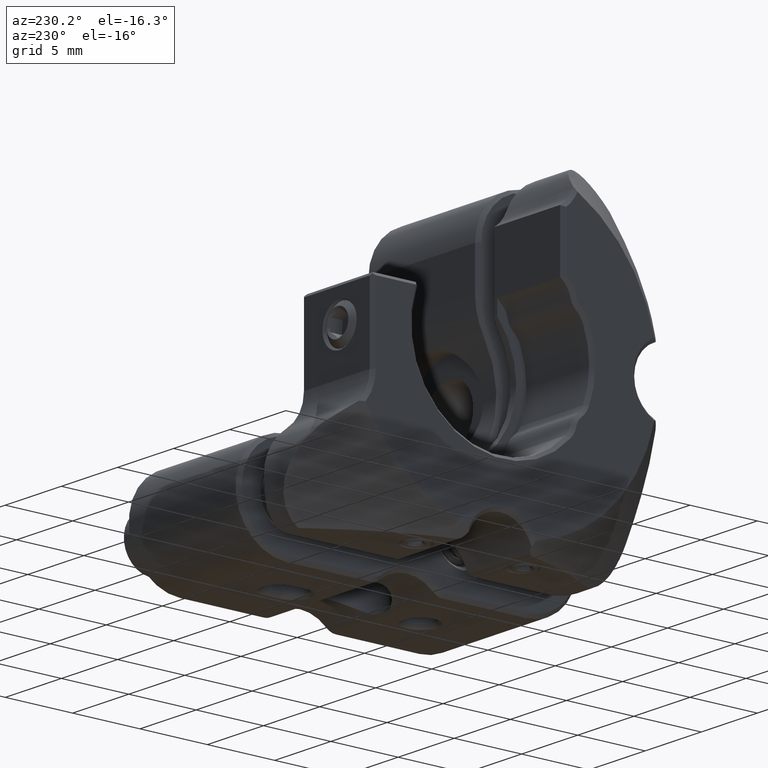
[diagram: clean part render]
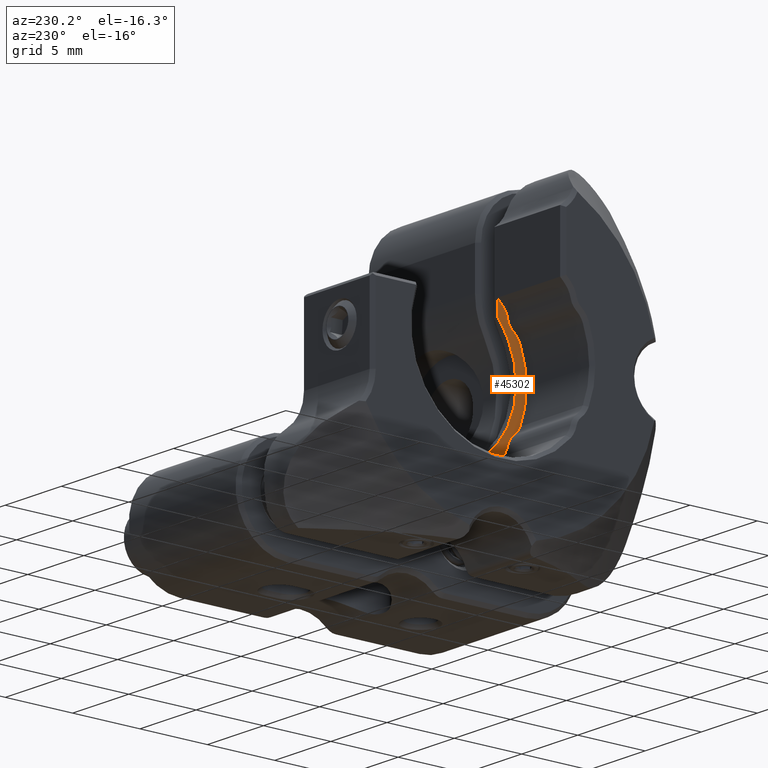
[diagram: same view with one face highlighted and labeled with its STEP entity id]
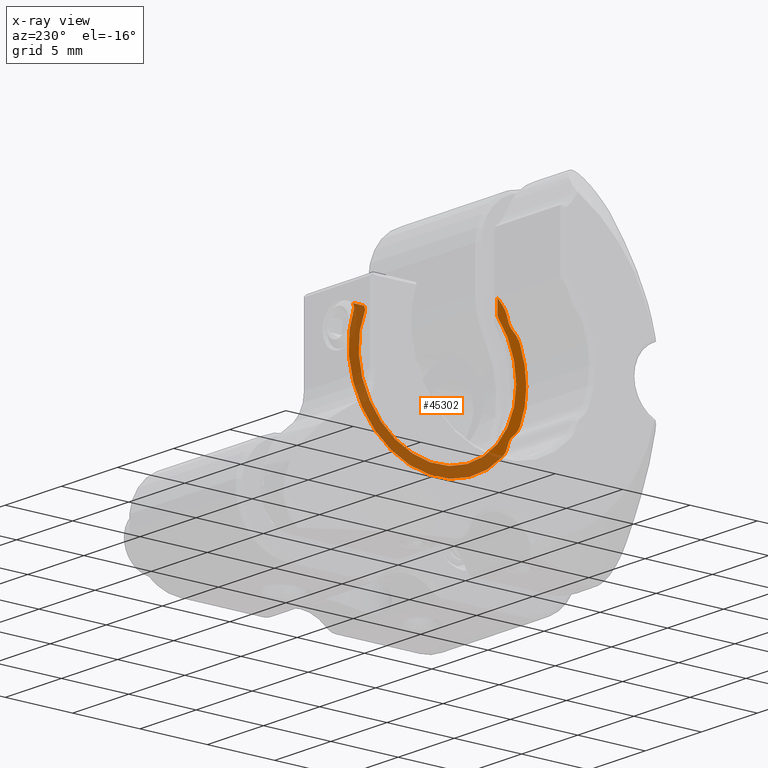
[diagram: x-ray of the same camera — body ghosted, the highlighted face saturated]
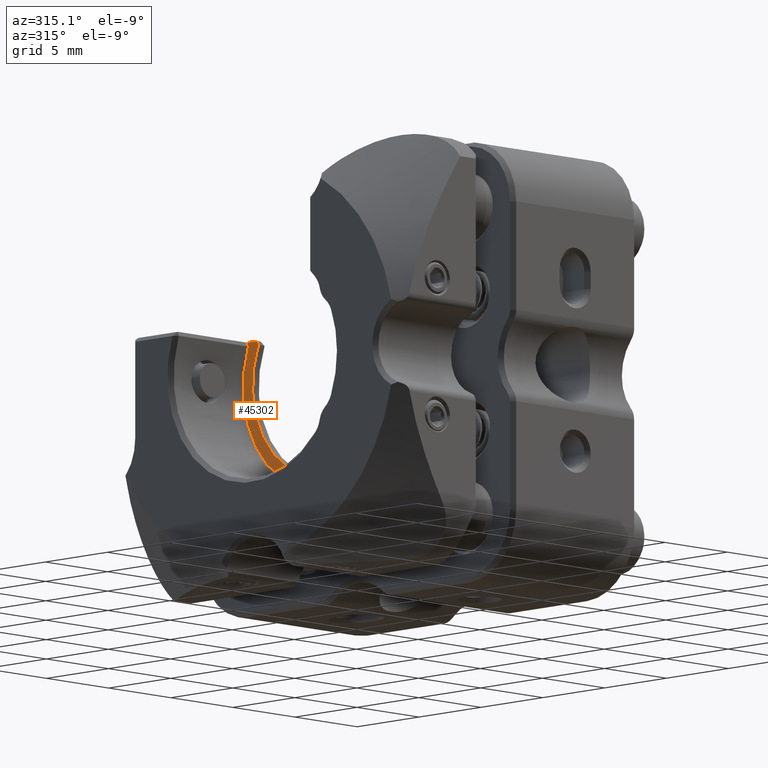
[diagram: same view with one face highlighted and labeled with its STEP entity id]
A machine part, auxiliary view. The second image highlights one B-rep face of the part: STEP entity #45302.
The next image is the same camera in x-ray: the body ghosted, the highlighted face saturated — about 65% of this face is hidden behind the body in this view.
A second angle (auxiliary view) of the same face is appended — the face is thin or edge-on in the first view.
In plain terms, the highlighted planar face has unit normal (-1, -0, 0).
Its self-contained STEP definition (entity closure, byte-faithful):
#137 = CARTESIAN_POINT ( 'NONE',  ( -7.500000000000001776, -6.344288770224766338, -4.000000000000157208 ) ) ;
#761 = CARTESIAN_POINT ( 'NONE',  ( -7.500000000000001776, -3.750800921362283713, 3.455646458812991373 ) ) ;
#1418 = CIRCLE ( 'NONE', #46984, 6.600000000000001421 ) ;
#1555 = AXIS2_PLACEMENT_3D ( 'NONE', #21992, #36753, #44259 ) ;
#1769 = CARTESIAN_POINT ( 'NONE',  ( -7.500000000000001776, 6.177629118058951541, 2.323122570961214439 ) ) ;
#1834 = AXIS2_PLACEMENT_3D ( 'NONE', #47799, #7643, #43927 ) ;
#1948 = AXIS2_PLACEMENT_3D ( 'NONE', #31914, #21254, #36020 ) ;
#2209 = EDGE_CURVE ( 'NONE', #12589, #30702, #32298, .T. ) ;
#2298 = CARTESIAN_POINT ( 'NONE',  ( -7.500000000000001776, -5.645934562276532453, -3.086325331290892482 ) ) ;
#2518 = VERTEX_POINT ( 'NONE', #11492 ) ;
#2530 = EDGE_CURVE ( 'NONE', #7406, #22437, #23456, .T. ) ;
#3073 = CARTESIAN_POINT ( 'NONE',  ( -7.500000000000001776, 5.366947043006404350, 2.327741273759627916 ) ) ;
#3352 = VECTOR ( 'NONE', #47067, 1000.000000000000000 ) ;
#4002 = DIRECTION ( 'NONE',  ( 0.000000000000000000, -1.000000000000000000, 0.000000000000000000 ) ) ;
#4449 = CARTESIAN_POINT ( 'NONE',  ( -7.500000000000001776, -3.469446951953614189E-15, 2.559999999999841958 ) ) ;
#4778 = ORIENTED_EDGE ( 'NONE', *, *, #11031, .F. ) ;
#5027 = CARTESIAN_POINT ( 'NONE',  ( -7.500000000000001776, -3.469446951953614189E-15, -1.582072770256425168E-13 ) ) ;
#7406 = VERTEX_POINT ( 'NONE', #2298 ) ;
#7643 = DIRECTION ( 'NONE',  ( -1.000000000000000000, 0.000000000000000000, 0.000000000000000000 ) ) ;
#8234 = VERTEX_POINT ( 'NONE', #24437 ) ;
#8295 = DIRECTION ( 'NONE',  ( 0.000000000000000000, -1.000000000000000000, -3.608224830031759249E-16 ) ) ;
#8542 = CARTESIAN_POINT ( 'NONE',  ( -7.500000000000001776, -3.469446951953614189E-15, -1.582072770256425168E-13 ) ) ;
#9173 = CARTESIAN_POINT ( 'NONE',  ( -7.500000000000001776, -4.440000000000003055, 3.809055000915428479 ) ) ;
#9907 = AXIS2_PLACEMENT_3D ( 'NONE', #31194, #45481, #35062 ) ;
#10496 = AXIS2_PLACEMENT_3D ( 'NONE', #16219, #23702, #13066 ) ;
#10837 = EDGE_LOOP ( 'NONE', ( #38805, #16166, #12513, #18409, #16858, #33813, #12537, #35054, #13655, #30728, #4778, #12504, #46291, #42135 ) ) ;
#11031 = EDGE_CURVE ( 'NONE', #8234, #47594, #30085, .T. ) ;
#11492 = CARTESIAN_POINT ( 'NONE',  ( -7.500000000000001776, -4.440000000000006608, 4.883277587850035850 ) ) ;
#11602 = VECTOR ( 'NONE', #30872, 1000.000000000000000 ) ;
#12151 = VERTEX_POINT ( 'NONE', #9173 ) ;
#12504 = ORIENTED_EDGE ( 'NONE', *, *, #19587, .T. ) ;
#12513 = ORIENTED_EDGE ( 'NONE', *, *, #24882, .T. ) ;
#12537 = ORIENTED_EDGE ( 'NONE', *, *, #2530, .F. ) ;
#12589 = VERTEX_POINT ( 'NONE', #28721 ) ;
#12836 = EDGE_CURVE ( 'NONE', #2518, #12151, #44922, .T. ) ;
#13066 = DIRECTION ( 'NONE',  ( 0.000000000000000000, -1.000000000000000000, -3.608224830031752347E-16 ) ) ;
#13655 = ORIENTED_EDGE ( 'NONE', *, *, #19862, .T. ) ;
#14154 = CARTESIAN_POINT ( 'NONE',  ( -7.500000000000001776, 6.274188145733615940, 2.559999999999844178 ) ) ;
#15263 = DIRECTION ( 'NONE',  ( 0.000000000000000000, -1.000000000000000000, -2.891205793294675861E-16 ) ) ;
#15433 = DIRECTION ( 'NONE',  ( 0.000000000000000000, -1.000000000000000000, -3.608224830031775027E-16 ) ) ;
#15831 = CIRCLE ( 'NONE', #1948, 1.500000000000001332 ) ;
#15964 = CARTESIAN_POINT ( 'NONE',  ( -7.500000000000001776, -3.469446951953614189E-15, -1.582072770256425168E-13 ) ) ;
#16166 = ORIENTED_EDGE ( 'NONE', *, *, #39143, .T. ) ;
#16219 = CARTESIAN_POINT ( 'NONE',  ( -7.500000000000001776, -3.469446951953614189E-15, -1.582072770256425168E-13 ) ) ;
#16858 = ORIENTED_EDGE ( 'NONE', *, *, #28702, .T. ) ;
#17584 = CARTESIAN_POINT ( 'NONE',  ( -7.500000000000001776, -4.853977662939424675, 4.472013064346273659 ) ) ;
#18084 = VERTEX_POINT ( 'NONE', #31738 ) ;
#18095 = LINE ( 'NONE', #36960, #18113 ) ;
#18113 = VECTOR ( 'NONE', #47859, 1000.000000000000114 ) ;
#18409 = ORIENTED_EDGE ( 'NONE', *, *, #2209, .T. ) ;
#18494 = DIRECTION ( 'NONE',  ( -1.000000000000000000, 0.000000000000000000, 0.000000000000000000 ) ) ;
#18870 = AXIS2_PLACEMENT_3D ( 'NONE', #5027, #44704, #15433 ) ;
#19497 = CARTESIAN_POINT ( 'NONE',  ( -7.500000000000001776, -4.440000000000003055, -1.598093288501765995E-13 ) ) ;
#19587 = EDGE_CURVE ( 'NONE', #8234, #44158, #21279, .T. ) ;
#19862 = EDGE_CURVE ( 'NONE', #35491, #18084, #39825, .T. ) ;
#20538 = DIRECTION ( 'NONE',  ( 0.000000000000000000, -1.000000000000000000, -3.608224830031752347E-16 ) ) ;
#20625 = VERTEX_POINT ( 'NONE', #46924 ) ;
#20646 = VECTOR ( 'NONE', #31690, 1000.000000000000000 ) ;
#20790 = EDGE_CURVE ( 'NONE', #20625, #22437, #15831, .T. ) ;
#21132 = AXIS2_PLACEMENT_3D ( 'NONE', #137, #18494, #4002 ) ;
#21254 = DIRECTION ( 'NONE',  ( -1.000000000000000000, 0.000000000000000000, 0.000000000000000000 ) ) ;
#21279 = CIRCLE ( 'NONE', #27456, 1.500000000000001332 ) ;
#21992 = CARTESIAN_POINT ( 'NONE',  ( -7.500000000000001776, -6.344288770224762786, 3.999999999999844125 ) ) ;
#22437 = VERTEX_POINT ( 'NONE', #39583 ) ;
#22800 = LINE ( 'NONE', #4449, #20646 ) ;
#23456 = CIRCLE ( 'NONE', #21132, 1.149999999999998135 ) ;
#23702 = DIRECTION ( 'NONE',  ( -1.000000000000000000, 0.000000000000000000, 0.000000000000000000 ) ) ;
#23763 = CIRCLE ( 'NONE', #9907, 1.500000000000001332 ) ;
#24437 = CARTESIAN_POINT ( 'NONE',  ( -7.500000000000001776, -5.218812911284443246, 3.763771104767814180 ) ) ;
#24882 = EDGE_CURVE ( 'NONE', #47532, #12589, #22800, .T. ) ;
#27456 = AXIS2_PLACEMENT_3D ( 'NONE', #761, #36787, #15263 ) ;
#27793 = DIRECTION ( 'NONE',  ( -1.000000000000000000, 0.000000000000000000, 0.000000000000000000 ) ) ;
#28204 = EDGE_CURVE ( 'NONE', #7406, #35491, #23763, .T. ) ;
#28702 = EDGE_CURVE ( 'NONE', #30702, #20625, #1418, .T. ) ;
#28721 = CARTESIAN_POINT ( 'NONE',  ( -7.500000000000001776, 6.274188145733615940, 2.559999999999843734 ) ) ;
#29241 = DIRECTION ( 'NONE',  ( 0.000000000000000000, -1.000000000000000000, -3.608224830031752347E-16 ) ) ;
#30085 = CIRCLE ( 'NONE', #1555, 1.149999999999998135 ) ;
#30293 = DIRECTION ( 'NONE',  ( -1.000000000000000000, -0.000000000000000000, 0.000000000000000000 ) ) ;
#30702 = VERTEX_POINT ( 'NONE', #1769 ) ;
#30728 = ORIENTED_EDGE ( 'NONE', *, *, #36400, .T. ) ;
#30872 = DIRECTION ( 'NONE',  ( -0.000000000000000000, 3.608224830031759249E-16, -1.000000000000000000 ) ) ;
#31194 = CARTESIAN_POINT ( 'NONE',  ( -7.500000000000001776, -4.735037769300571853, -1.894575763409236835 ) ) ;
#31690 = DIRECTION ( 'NONE',  ( -0.000000000000000000, 1.000000000000000000, 3.608224830031759249E-16 ) ) ;
#31738 = CARTESIAN_POINT ( 'NONE',  ( -7.500000000000001776, -6.127695936741918814, 2.451803929117470471 ) ) ;
#31914 = CARTESIAN_POINT ( 'NONE',  ( -7.500000000000001776, -3.750800921362283713, -3.455646458813308897 ) ) ;
#32298 = LINE ( 'NONE', #14154, #3352 ) ;
#32400 = CARTESIAN_POINT ( 'NONE',  ( -7.500000000000001776, -3.469446951953614189E-15, -1.582072770256425168E-13 ) ) ;
#33557 = CIRCLE ( 'NONE', #18870, 5.850000000000004086 ) ;
#33813 = ORIENTED_EDGE ( 'NONE', *, *, #20790, .T. ) ;
#33924 = FACE_OUTER_BOUND ( 'NONE', #10837, .T. ) ;
#34645 = PLANE ( 'NONE',  #45294 ) ;
#35040 = AXIS2_PLACEMENT_3D ( 'NONE', #32400, #37636, #29241 ) ;
#35054 = ORIENTED_EDGE ( 'NONE', *, *, #28204, .T. ) ;
#35062 = DIRECTION ( 'NONE',  ( 0.000000000000000000, -1.000000000000000000, -2.891205793294675861E-16 ) ) ;
#35491 = VERTEX_POINT ( 'NONE', #38708 ) ;
#35798 = CIRCLE ( 'NONE', #35040, 6.600000000000001421 ) ;
#35868 = EDGE_CURVE ( 'NONE', #44158, #2518, #35798, .T. ) ;
#36020 = DIRECTION ( 'NONE',  ( 0.000000000000000000, -1.000000000000000000, -2.891205793294675861E-16 ) ) ;
#36225 = VERTEX_POINT ( 'NONE', #3073 ) ;
#36400 = EDGE_CURVE ( 'NONE', #18084, #47594, #43537, .T. ) ;
#36753 = DIRECTION ( 'NONE',  ( -1.000000000000000000, 0.000000000000000000, 0.000000000000000000 ) ) ;
#36787 = DIRECTION ( 'NONE',  ( -1.000000000000000000, 0.000000000000000000, 0.000000000000000000 ) ) ;
#36960 = CARTESIAN_POINT ( 'NONE',  ( -7.500000000000001776, 5.447141077775201623, 2.559999999999843734 ) ) ;
#37636 = DIRECTION ( 'NONE',  ( -1.000000000000000000, 0.000000000000000000, 0.000000000000000000 ) ) ;
#38708 = CARTESIAN_POINT ( 'NONE',  ( -7.500000000000001776, -6.127695936741918814, -2.451803929117790215 ) ) ;
#38805 = ORIENTED_EDGE ( 'NONE', *, *, #39743, .T. ) ;
#39143 = EDGE_CURVE ( 'NONE', #36225, #47532, #18095, .T. ) ;
#39583 = CARTESIAN_POINT ( 'NONE',  ( -7.500000000000001776, -5.218812911284443246, -3.763771104768131259 ) ) ;
#39743 = EDGE_CURVE ( 'NONE', #12151, #36225, #33557, .T. ) ;
#39825 = CIRCLE ( 'NONE', #10496, 6.600000000000001421 ) ;
#40166 = CARTESIAN_POINT ( 'NONE',  ( -7.500000000000001776, -5.645934562276532453, 3.086325331290575846 ) ) ;
#42135 = ORIENTED_EDGE ( 'NONE', *, *, #12836, .T. ) ;
#43537 = CIRCLE ( 'NONE', #1834, 1.500000000000001332 ) ;
#43927 = DIRECTION ( 'NONE',  ( 0.000000000000000000, -1.000000000000000000, -2.891205793294675861E-16 ) ) ;
#44044 = CARTESIAN_POINT ( 'NONE',  ( -7.500000000000001776, 5.447141077775201623, 2.559999999999843290 ) ) ;
#44158 = VERTEX_POINT ( 'NONE', #17584 ) ;
#44259 = DIRECTION ( 'NONE',  ( 0.000000000000000000, -1.000000000000000000, 0.000000000000000000 ) ) ;
#44704 = DIRECTION ( 'NONE',  ( 1.000000000000000000, -0.000000000000000000, -0.000000000000000000 ) ) ;
#44922 = LINE ( 'NONE', #19497, #11602 ) ;
#45294 = AXIS2_PLACEMENT_3D ( 'NONE', #8542, #30293, #8295 ) ;
#45302 = ADVANCED_FACE ( 'NONE', ( #33924 ), #34645, .T. ) ;
#45481 = DIRECTION ( 'NONE',  ( -1.000000000000000000, 0.000000000000000000, 0.000000000000000000 ) ) ;
#46291 = ORIENTED_EDGE ( 'NONE', *, *, #35868, .T. ) ;
#46924 = CARTESIAN_POINT ( 'NONE',  ( -7.500000000000001776, -4.853977662939424675, -4.472013064346590738 ) ) ;
#46984 = AXIS2_PLACEMENT_3D ( 'NONE', #15964, #27793, #20538 ) ;
#47067 = DIRECTION ( 'NONE',  ( 0.000000000000000000, -0.3774759469761965747, -0.9260193893512292940 ) ) ;
#47532 = VERTEX_POINT ( 'NONE', #44044 ) ;
#47594 = VERTEX_POINT ( 'NONE', #40166 ) ;
#47799 = CARTESIAN_POINT ( 'NONE',  ( -7.500000000000001776, -4.735037769300571853, 1.894575763408918201 ) ) ;
#47859 = DIRECTION ( 'NONE',  ( -0.000000000000000000, 0.3263719125286856371, 0.9452414372594801772 ) ) ;